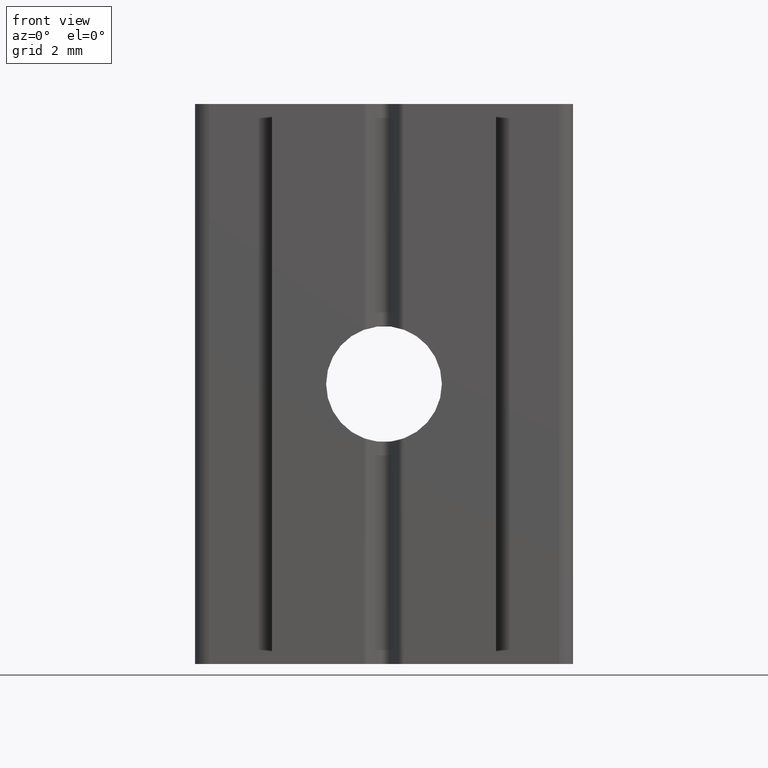
[diagram: clean part render]
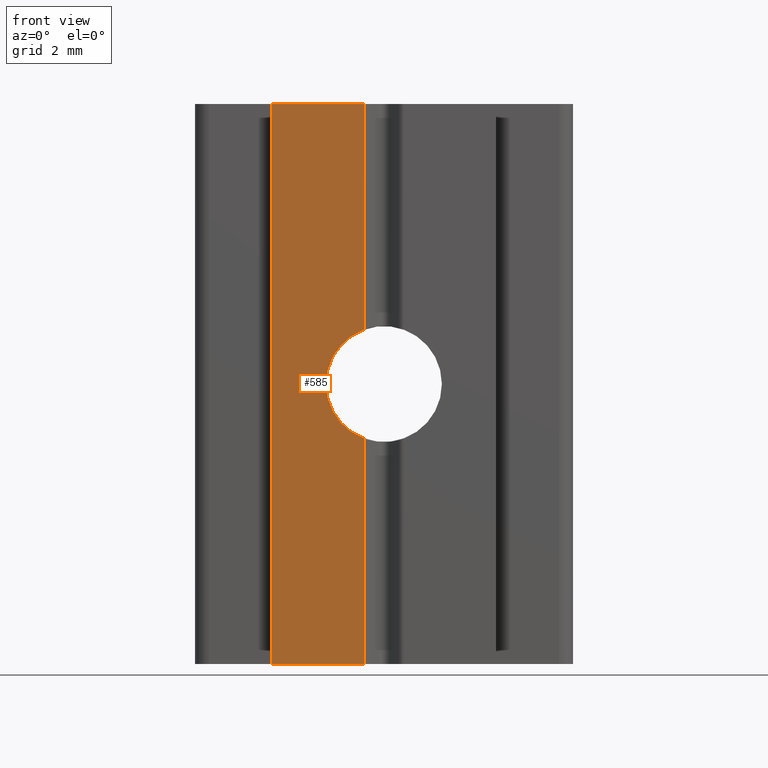
[diagram: same view with one face highlighted and labeled with its STEP entity id]
A machine part, front view. The second image highlights one B-rep face of the part: STEP entity #585.
In plain terms, the highlighted planar face has unit normal (0, -1, 0).
Its self-contained STEP definition (entity closure, byte-faithful):
#21=PLANE('',#650);
#45=FACE_OUTER_BOUND('',#75,.T.);
#75=EDGE_LOOP('',(#447,#448,#449,#450,#451,#452,#453));
#105=LINE('',#924,#160);
#122=LINE('',#969,#177);
#124=LINE('',#974,#179);
#125=LINE('',#976,#180);
#126=LINE('',#977,#181);
#160=VECTOR('',#705,10.);
#177=VECTOR('',#752,10.);
#179=VECTOR('',#758,10.);
#180=VECTOR('',#759,10.);
#181=VECTOR('',#760,10.);
#216=CIRCLE('',#626,2.067);
#218=CIRCLE('',#632,2.067);
#239=VERTEX_POINT('',#857);
#240=VERTEX_POINT('',#859);
#251=VERTEX_POINT('',#914);
#252=VERTEX_POINT('',#923);
#265=VERTEX_POINT('',#967);
#266=VERTEX_POINT('',#973);
#267=VERTEX_POINT('',#975);
#299=EDGE_CURVE('',#240,#239,#216,.T.);
#311=EDGE_CURVE('',#239,#251,#218,.T.);
#312=EDGE_CURVE('',#240,#252,#105,.T.);
#335=EDGE_CURVE('',#265,#251,#122,.T.);
#337=EDGE_CURVE('',#266,#265,#124,.T.);
#338=EDGE_CURVE('',#267,#266,#125,.T.);
#339=EDGE_CURVE('',#252,#267,#126,.T.);
#447=ORIENTED_EDGE('',*,*,#299,.T.);
#448=ORIENTED_EDGE('',*,*,#311,.T.);
#449=ORIENTED_EDGE('',*,*,#335,.F.);
#450=ORIENTED_EDGE('',*,*,#337,.F.);
#451=ORIENTED_EDGE('',*,*,#338,.F.);
#452=ORIENTED_EDGE('',*,*,#339,.F.);
#453=ORIENTED_EDGE('',*,*,#312,.F.);
#585=ADVANCED_FACE('',(#45),#21,.T.);
#626=AXIS2_PLACEMENT_3D('',#860,#689,#690);
#632=AXIS2_PLACEMENT_3D('',#921,#701,#702);
#650=AXIS2_PLACEMENT_3D('',#972,#756,#757);
#689=DIRECTION('center_axis',(0.,1.,0.));
#690=DIRECTION('ref_axis',(1.,0.,0.));
#701=DIRECTION('center_axis',(0.,1.,0.));
#702=DIRECTION('ref_axis',(1.,0.,0.));
#705=DIRECTION('',(0.,0.,-1.));
#752=DIRECTION('',(0.,0.,-1.));
#756=DIRECTION('center_axis',(0.,-1.,0.));
#757=DIRECTION('ref_axis',(1.,0.,0.));
#758=DIRECTION('',(1.,0.,0.));
#759=DIRECTION('',(0.,0.,1.));
#760=DIRECTION('',(-1.,0.,0.));
#857=CARTESIAN_POINT('',(-2.067,-3.,2.53134493383758E-16));
#859=CARTESIAN_POINT('',(-0.707106781186547,-3.,-1.94228962824806));
#860=CARTESIAN_POINT('Origin',(0.,-3.,0.));
#914=CARTESIAN_POINT('',(-0.707106781186547,-3.,1.94228962824806));
#921=CARTESIAN_POINT('Origin',(0.,-3.,0.));
#923=CARTESIAN_POINT('',(-0.707106781186547,-3.,-10.));
#924=CARTESIAN_POINT('',(-0.707106781186547,-3.,0.));
#967=CARTESIAN_POINT('',(-0.707106781186547,-3.,10.));
#969=CARTESIAN_POINT('',(-0.707106781186547,-3.,0.));
#972=CARTESIAN_POINT('Origin',(-4.,-3.,0.));
#973=CARTESIAN_POINT('',(-4.,-3.,10.));
#974=CARTESIAN_POINT('',(-4.,-3.,10.));
#975=CARTESIAN_POINT('',(-4.,-3.,-10.));
#976=CARTESIAN_POINT('',(-4.,-3.,0.));
#977=CARTESIAN_POINT('',(-4.,-3.,-10.));